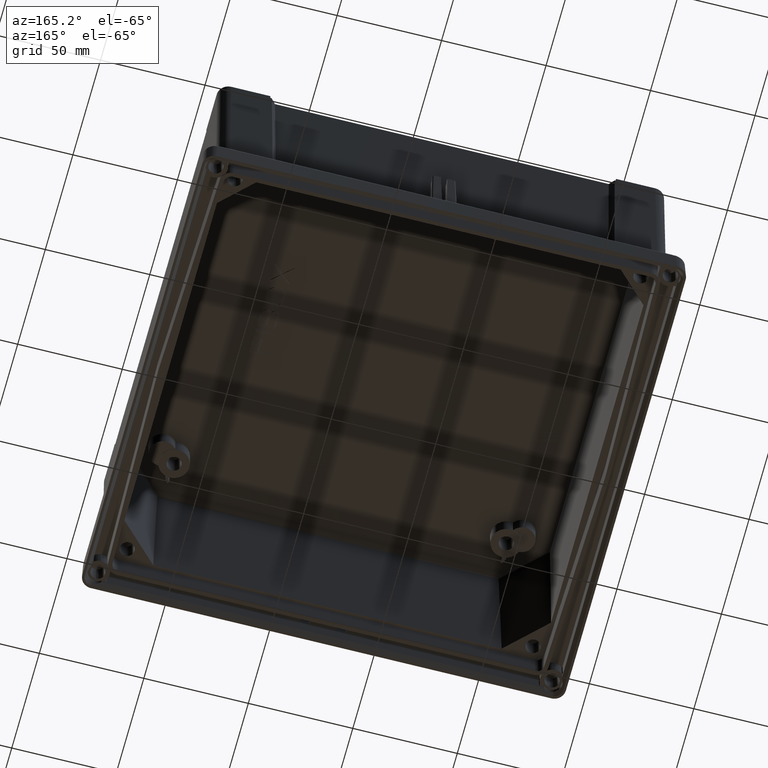
[diagram: clean part render]
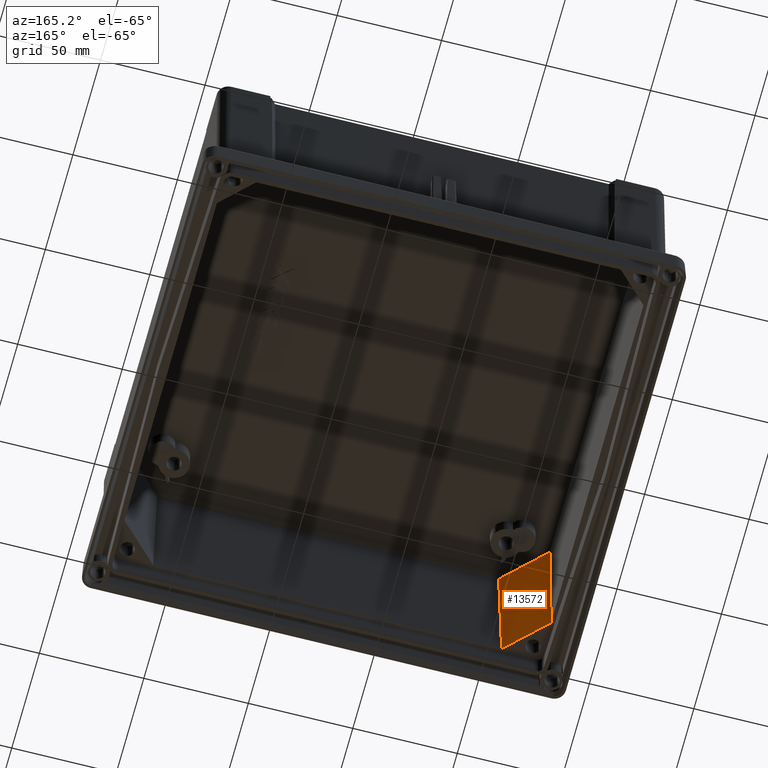
[diagram: same view with one face highlighted and labeled with its STEP entity id]
A machine part, auxiliary view. The second image highlights one B-rep face of the part: STEP entity #13572.
In plain terms, the highlighted planar face has unit normal (0.7069, 0.7069, -0.0262).
Its self-contained STEP definition (entity closure, byte-faithful):
#373 = CARTESIAN_POINT ( 'NONE',  ( -106.9852150747160900, -101.4378355566333000, 88.85698109016956900 ) ) ;
#376 = CARTESIAN_POINT ( 'NONE',  ( -126.3877713685410700, -82.03513610119566100, 88.86064532526322100 ) ) ;
#377 = DIRECTION ( 'NONE',  ( -0.7071067811865472400, 0.7071067811865479100, 0.0000000000000000000 ) ) ;
#378 = VECTOR ( 'NONE', #377, 999.9999999999998900 ) ;
#379 = CARTESIAN_POINT ( 'NONE',  ( -116.6864122298705000, -91.73641222987049600, 88.86308847415392600 ) ) ;
#380 = LINE ( 'NONE', #379, #378 ) ;
#9648 = CARTESIAN_POINT ( 'NONE',  ( -127.3367150434758200, -83.79218750024502100, 15.78999999999999900 ) ) ;
#9649 = DIRECTION ( 'NONE',  ( 0.7071067811865474600, -0.7071067811865474600, 0.0000000000000000000 ) ) ;
#9650 = VECTOR ( 'NONE', #9649, 1000.000000000000100 ) ;
#9651 = CARTESIAN_POINT ( 'NONE',  ( -118.0037541057721000, -93.12514843794873800, 15.78999999999999900 ) ) ;
#9652 = LINE ( 'NONE', #9651, #9650 ) ;
#9653 = CARTESIAN_POINT ( 'NONE',  ( -108.6707931680683900, -102.4581093756524600, 15.78999999999999900 ) ) ;
#9672 = DIRECTION ( 'NONE',  ( -0.7071067811865474600, 0.7071067811865474600, 0.0000000000000000000 ) ) ;
#9673 = DIRECTION ( 'NONE',  ( 0.7068644733530208300, 0.7068644733530208300, -0.02617694830787315900 ) ) ;
#9674 = CARTESIAN_POINT ( 'NONE',  ( -104.8514055465695700, -106.3885944534304300, 12.78999999999999900 ) ) ;
#9675 = AXIS2_PLACEMENT_3D ( 'NONE', #9674, #9673, #9672 ) ;
#9676 = PLANE ( 'NONE',  #9675 ) ;
#9677 = FACE_OUTER_BOUND ( 'NONE', #13551, .T. ) ;
#9686 = DIRECTION ( 'NONE',  ( -0.01395846737512566400, -0.02306056118043329000, -0.9996366198307167200 ) ) ;
#9687 = VECTOR ( 'NONE', #9686, 1000.000000000000100 ) ;
#9688 = CARTESIAN_POINT ( 'NONE',  ( -126.8622326596998400, -82.81895895755678800, 54.88299928955996200 ) ) ;
#9689 = LINE ( 'NONE', #9688, #9687 ) ;
#9690 = CARTESIAN_POINT ( 'NONE',  ( -127.3367150434758200, -83.60284373129647400, 20.90291010496570900 ) ) ;
#9691 = DIRECTION ( 'NONE',  ( 0.0000000000000000000, -0.03700711824748989500, -0.9993150019883700900 ) ) ;
#9692 = VECTOR ( 'NONE', #9691, 1000.000000000000100 ) ;
#9693 = CARTESIAN_POINT ( 'NONE',  ( -127.3367150434758200, -83.69751561577075400, 18.34645505248285200 ) ) ;
#9694 = LINE ( 'NONE', #9693, #9692 ) ;
#9695 = DIRECTION ( 'NONE',  ( -0.02306056118043298500, -0.01395846737512611600, -0.9996366198307167200 ) ) ;
#9696 = VECTOR ( 'NONE', #9695, 1000.000000000000100 ) ;
#9697 = CARTESIAN_POINT ( 'NONE',  ( -107.8279336759427300, -101.9479298257881800, 52.32654423707696600 ) ) ;
#9698 = LINE ( 'NONE', #9697, #9696 ) ;
#13551 = EDGE_LOOP ( 'NONE', ( #13552, #13554, #13561, #13564, #13566 ) ) ;
#13552 = ORIENTED_EDGE ( 'NONE', *, *, #13560, .T. ) ;
#13553 = VERTEX_POINT ( 'NONE', #9653 ) ;
#13554 = ORIENTED_EDGE ( 'NONE', *, *, #13555, .F. ) ;
#13555 = EDGE_CURVE ( 'NONE', #13556, #13553, #9652, .T. ) ;
#13556 = VERTEX_POINT ( 'NONE', #9648 ) ;
#13560 = EDGE_CURVE ( 'NONE', #14136, #13553, #9698, .T. ) ;
#13561 = ORIENTED_EDGE ( 'NONE', *, *, #13562, .F. ) ;
#13562 = EDGE_CURVE ( 'NONE', #13563, #13556, #9694, .T. ) ;
#13563 = VERTEX_POINT ( 'NONE', #9690 ) ;
#13564 = ORIENTED_EDGE ( 'NONE', *, *, #13565, .F. ) ;
#13565 = EDGE_CURVE ( 'NONE', #14130, #13563, #9689, .T. ) ;
#13566 = ORIENTED_EDGE ( 'NONE', *, *, #14129, .F. ) ;
#13572 = ADVANCED_FACE ( 'NONE', ( #9677 ), #9676, .T. ) ;
#14129 = EDGE_CURVE ( 'NONE', #14136, #14130, #380, .T. ) ;
#14130 = VERTEX_POINT ( 'NONE', #376 ) ;
#14136 = VERTEX_POINT ( 'NONE', #373 ) ;